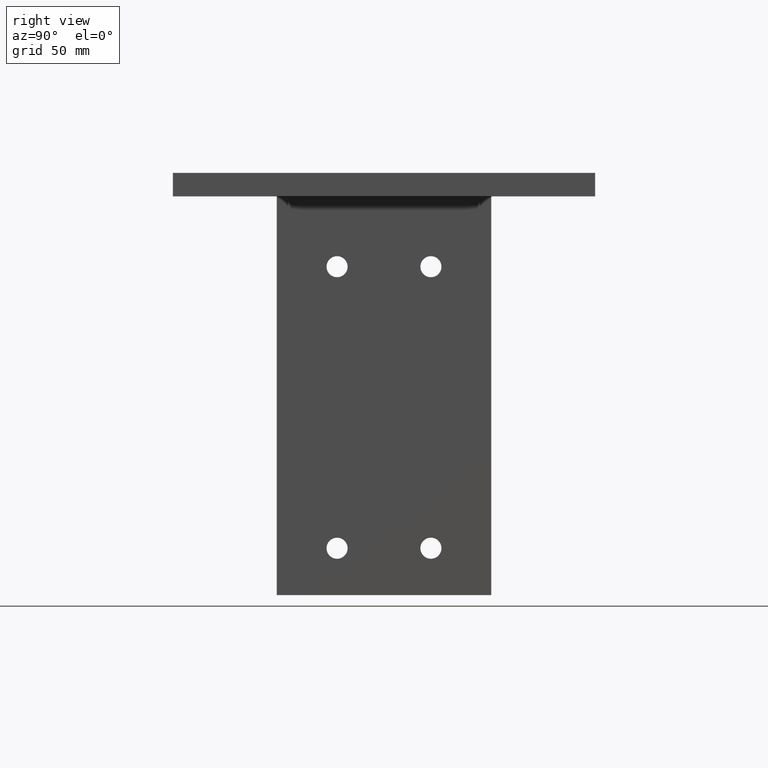
[diagram: clean part render]
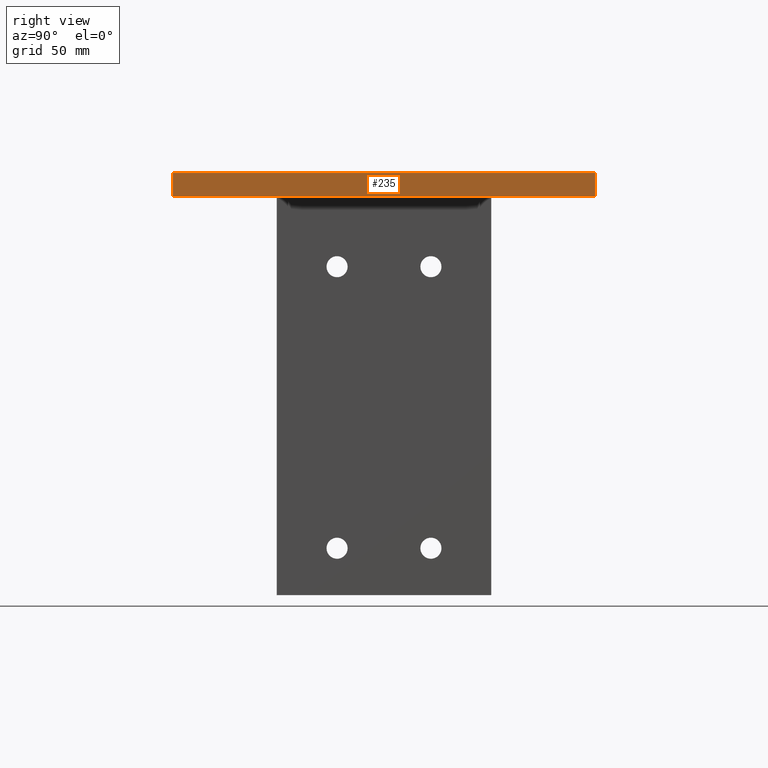
[diagram: same view with one face highlighted and labeled with its STEP entity id]
A machine part, right view. The second image highlights one B-rep face of the part: STEP entity #235.
In plain terms, the highlighted planar face has unit normal (-1, 0, 0).
Its self-contained STEP definition (entity closure, byte-faithful):
#125 = VERTEX_POINT ( 'NONE', #379 ) ;
#131 = VERTEX_POINT ( 'NONE', #385 ) ;
#132 = VERTEX_POINT ( 'NONE', #386 ) ;
#137 = VERTEX_POINT ( 'NONE', #391 ) ;
#199 = CARTESIAN_POINT ( 'NONE',  ( 180.0000000000000000, 0.0000000000000000000, 5.000000000000000000 ) ) ;
#200 = DIRECTION ( 'NONE',  ( -0.0000000000000000000, -0.0000000000000000000, -1.000000000000000000 ) ) ;
#201 = CARTESIAN_POINT ( 'NONE',  ( 180.0000000000000000, 90.00000000000000000, 0.0000000000000000000 ) ) ;
#202 = DIRECTION ( 'NONE',  ( -0.0000000000000000000, -1.000000000000000000, -0.0000000000000000000 ) ) ;
#203 = CARTESIAN_POINT ( 'NONE',  ( 180.0000000000000000, 90.00000000000000000, 10.00000000000000000 ) ) ;
#204 = DIRECTION ( 'NONE',  ( -0.0000000000000000000, -1.000000000000000000, -0.0000000000000000000 ) ) ;
#205 = CARTESIAN_POINT ( 'NONE',  ( 180.0000000000000000, 180.0000000000000000, 5.000000000000000000 ) ) ;
#206 = DIRECTION ( 'NONE',  ( -0.0000000000000000000, -0.0000000000000000000, -1.000000000000000000 ) ) ;
#235 = ADVANCED_FACE ( 'NONE', ( #507 ), #266, .F. ) ;
#266 = PLANE ( 'NONE',  #804 ) ;
#267 = CARTESIAN_POINT ( 'NONE',  ( 180.0000000000000000, 180.0000000000000000, 0.0000000000000000000 ) ) ;
#268 = DIRECTION ( 'NONE',  ( -1.000000000000000000, 0.0000000000000000000, 0.0000000000000000000 ) ) ;
#269 = DIRECTION ( 'NONE',  ( 0.0000000000000000000, -1.000000000000000000, 0.0000000000000000000 ) ) ;
#297 = EDGE_CURVE ( 'NONE', #132, #131, #537, .T. ) ;
#298 = EDGE_CURVE ( 'NONE', #137, #131, #539, .T. ) ;
#299 = EDGE_CURVE ( 'NONE', #125, #132, #541, .T. ) ;
#300 = EDGE_CURVE ( 'NONE', #125, #137, #543, .T. ) ;
#379 = CARTESIAN_POINT ( 'NONE',  ( 180.0000000000000000, 180.0000000000000000, 10.00000000000000200 ) ) ;
#385 = CARTESIAN_POINT ( 'NONE',  ( 180.0000000000000000, 5.204170427930421300E-015, -3.252606517456513300E-016 ) ) ;
#386 = CARTESIAN_POINT ( 'NONE',  ( 180.0000000000000000, 5.204170427930421300E-015, 10.00000000000000200 ) ) ;
#391 = CARTESIAN_POINT ( 'NONE',  ( 180.0000000000000000, 180.0000000000000000, -3.252606517456513300E-016 ) ) ;
#507 = FACE_OUTER_BOUND ( 'NONE', #1247, .T. ) ;
#537 = LINE ( 'NONE', #199, #538 ) ;
#538 = VECTOR ( 'NONE', #200, 1000.000000000000000 ) ;
#539 = LINE ( 'NONE', #201, #540 ) ;
#540 = VECTOR ( 'NONE', #202, 1000.000000000000000 ) ;
#541 = LINE ( 'NONE', #203, #542 ) ;
#542 = VECTOR ( 'NONE', #204, 1000.000000000000000 ) ;
#543 = LINE ( 'NONE', #205, #544 ) ;
#544 = VECTOR ( 'NONE', #206, 1000.000000000000000 ) ;
#804 = AXIS2_PLACEMENT_3D ( 'NONE', #267, #268, #269 ) ;
#1148 = ORIENTED_EDGE ( 'NONE', *, *, #298, .F. ) ;
#1149 = ORIENTED_EDGE ( 'NONE', *, *, #297, .T. ) ;
#1150 = ORIENTED_EDGE ( 'NONE', *, *, #299, .T. ) ;
#1151 = ORIENTED_EDGE ( 'NONE', *, *, #300, .F. ) ;
#1247 = EDGE_LOOP ( 'NONE', ( #1151, #1150, #1149, #1148 ) ) ;